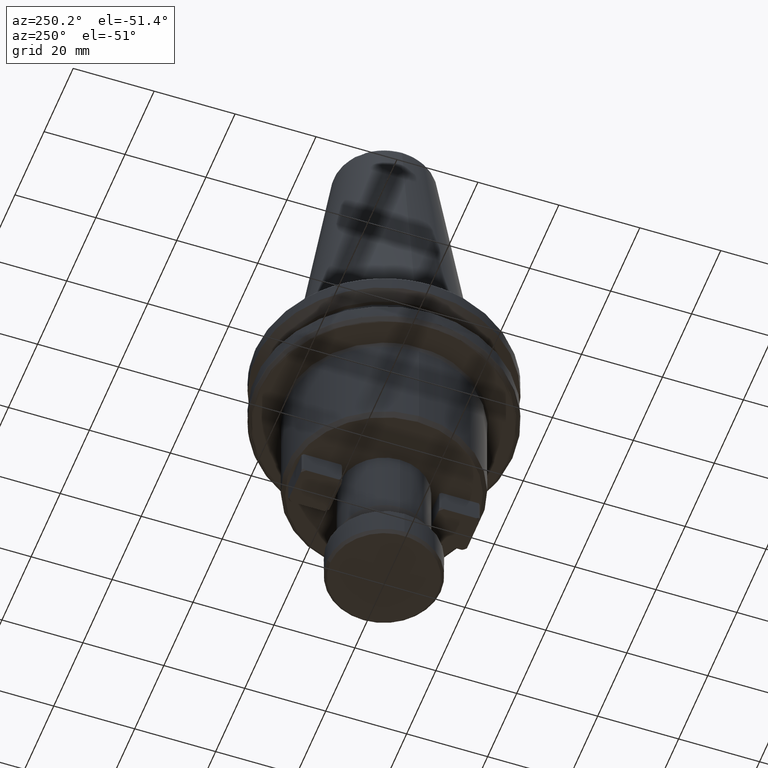
[diagram: clean part render]
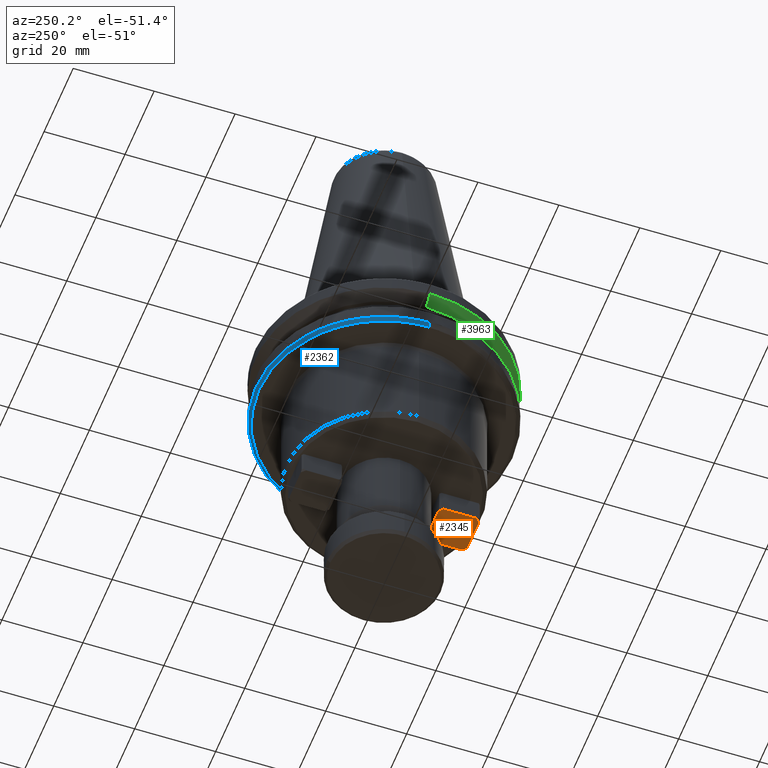
[diagram: same view with three faces highlighted in distinct colors, each labeled with its STEP entity id]
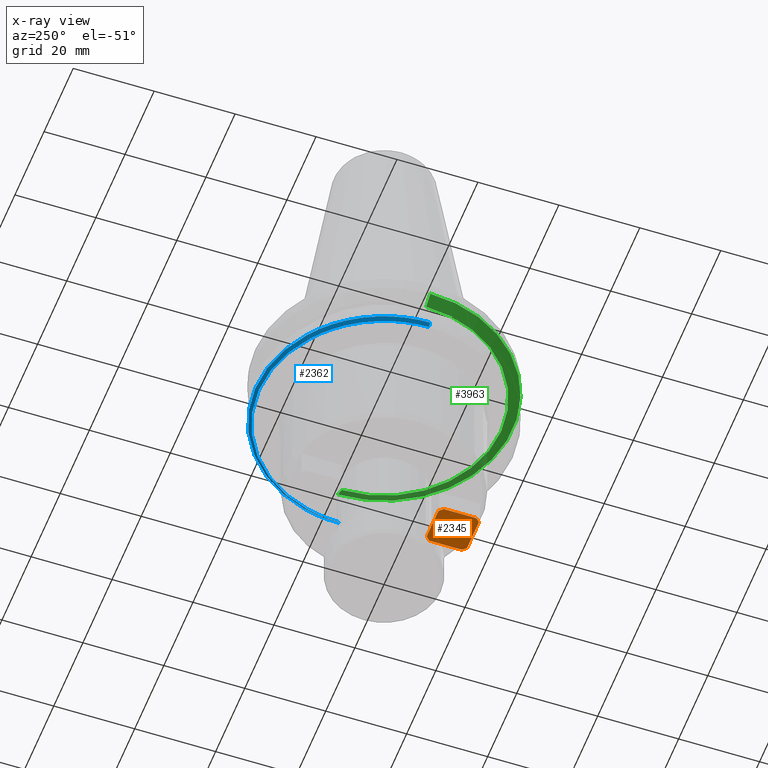
[diagram: x-ray of the same camera — body ghosted, the three highlighted faces saturated]
A machine part, auxiliary view with three faces highlighted in distinct colors.
The next image is the same camera in x-ray (body ghosted, the three faces saturated) — at least one of them is partly hidden behind the body in this view.
Their STEP definitions:

[orange] entity #2345 — the highlighted planar face has unit normal (0, 0, 1).
#3 = ORIENTED_EDGE ( 'NONE', *, *, #2706, .T. ) ;
#193 = VECTOR ( 'NONE', #1886, 1000.000000000000000 ) ;
#212 = DIRECTION ( 'NONE',  ( 0.7071067811865431300, -0.7071067811865520100, 0.0000000000000000000 ) ) ;
#317 = CARTESIAN_POINT ( 'NONE',  ( 4.034314575050808000, -22.00000000000001100, -50.79999999999999700 ) ) ;
#322 = VERTEX_POINT ( 'NONE', #1993 ) ;
#485 = CARTESIAN_POINT ( 'NONE',  ( -4.034314575050805400, -22.00000000000001100, -50.79999999999999700 ) ) ;
#525 = CARTESIAN_POINT ( 'NONE',  ( -5.000000000000002700, -21.03431457505080000, -50.79999999999999700 ) ) ;
#579 = PLANE ( 'NONE',  #4142 ) ;
#601 = CARTESIAN_POINT ( 'NONE',  ( 4.034314575050808000, -22.00000000000000700, -50.79999999999999700 ) ) ;
#699 = VECTOR ( 'NONE', #3827, 1000.000000000000000 ) ;
#783 = LINE ( 'NONE', #1332, #1516 ) ;
#923 = VERTEX_POINT ( 'NONE', #601 ) ;
#943 = VECTOR ( 'NONE', #1258, 1000.000000000000100 ) ;
#951 = FACE_OUTER_BOUND ( 'NONE', #2179, .T. ) ;
#956 = DIRECTION ( 'NONE',  ( 1.000000000000000000, 0.0000000000000000000, 0.0000000000000000000 ) ) ;
#1042 = LINE ( 'NONE', #1559, #193 ) ;
#1258 = DIRECTION ( 'NONE',  ( 0.7071067811865570100, 0.7071067811865379100, 0.0000000000000000000 ) ) ;
#1264 = CARTESIAN_POINT ( 'NONE',  ( 4.034314575050803600, -12.00000000000000700, -50.79999999999999700 ) ) ;
#1284 = EDGE_CURVE ( 'NONE', #322, #2428, #3420, .T. ) ;
#1332 = CARTESIAN_POINT ( 'NONE',  ( 5.000000000000001800, -12.96568542494924300, -50.79999999999999700 ) ) ;
#1472 = ORIENTED_EDGE ( 'NONE', *, *, #2188, .F. ) ;
#1516 = VECTOR ( 'NONE', #3214, 1000.000000000000000 ) ;
#1530 = DIRECTION ( 'NONE',  ( 0.0000000000000000000, 0.0000000000000000000, 1.000000000000000000 ) ) ;
#1557 = ORIENTED_EDGE ( 'NONE', *, *, #3015, .F. ) ;
#1559 = CARTESIAN_POINT ( 'NONE',  ( -5.000000000000001800, -22.00000000000001100, -50.79999999999999700 ) ) ;
#1616 = VECTOR ( 'NONE', #3850, 1000.000000000000000 ) ;
#1619 = VERTEX_POINT ( 'NONE', #485 ) ;
#1659 = VERTEX_POINT ( 'NONE', #2392 ) ;
#1703 = DIRECTION ( 'NONE',  ( 4.336808689942017700E-016, 1.000000000000000000, 0.0000000000000000000 ) ) ;
#1725 = VECTOR ( 'NONE', #956, 1000.000000000000000 ) ;
#1821 = LINE ( 'NONE', #3188, #1616 ) ;
#1886 = DIRECTION ( 'NONE',  ( 1.000000000000000000, 0.0000000000000000000, 0.0000000000000000000 ) ) ;
#1912 = ORIENTED_EDGE ( 'NONE', *, *, #3447, .F. ) ;
#1993 = CARTESIAN_POINT ( 'NONE',  ( -4.034314575050767200, -12.00000000000000700, -50.79999999999999700 ) ) ;
#2006 = EDGE_CURVE ( 'NONE', #3947, #2737, #1821, .T. ) ;
#2057 = EDGE_CURVE ( 'NONE', #1659, #2428, #783, .T. ) ;
#2179 = EDGE_LOOP ( 'NONE', ( #3, #3231, #3281, #1472, #1912, #2535, #1557, #2824 ) ) ;
#2188 = EDGE_CURVE ( 'NONE', #2662, #1659, #2726, .T. ) ;
#2211 = CARTESIAN_POINT ( 'NONE',  ( -4.999999999999997300, -12.96568542494919800, -50.79999999999999700 ) ) ;
#2275 = CARTESIAN_POINT ( 'NONE',  ( -5.000000000000003600, -21.03431457505080400, -50.79999999999999700 ) ) ;
#2345 = ADVANCED_FACE ( 'NONE', ( #951 ), #579, .F. ) ;
#2392 = CARTESIAN_POINT ( 'NONE',  ( 4.999999999999999100, -12.96568542494924100, -50.79999999999999700 ) ) ;
#2425 = LINE ( 'NONE', #525, #3960 ) ;
#2428 = VERTEX_POINT ( 'NONE', #1264 ) ;
#2535 = ORIENTED_EDGE ( 'NONE', *, *, #3411, .F. ) ;
#2662 = VERTEX_POINT ( 'NONE', #4140 ) ;
#2706 = EDGE_CURVE ( 'NONE', #2737, #322, #3132, .T. ) ;
#2726 = LINE ( 'NONE', #2963, #3487 ) ;
#2737 = VERTEX_POINT ( 'NONE', #2211 ) ;
#2824 = ORIENTED_EDGE ( 'NONE', *, *, #2006, .T. ) ;
#2843 = CARTESIAN_POINT ( 'NONE',  ( -4.999999999999999100, -12.00000000000000500, -50.79999999999999700 ) ) ;
#2963 = CARTESIAN_POINT ( 'NONE',  ( 4.999999999999997300, -22.00000000000001100, -50.79999999999999700 ) ) ;
#3015 = EDGE_CURVE ( 'NONE', #3947, #1619, #2425, .T. ) ;
#3132 = LINE ( 'NONE', #3484, #699 ) ;
#3188 = CARTESIAN_POINT ( 'NONE',  ( -5.000000000000001800, -22.00000000000001100, -50.79999999999999700 ) ) ;
#3214 = DIRECTION ( 'NONE',  ( -0.7071067811865348100, 0.7071067811865602300, 0.0000000000000000000 ) ) ;
#3231 = ORIENTED_EDGE ( 'NONE', *, *, #1284, .T. ) ;
#3281 = ORIENTED_EDGE ( 'NONE', *, *, #2057, .F. ) ;
#3411 = EDGE_CURVE ( 'NONE', #1619, #923, #1042, .T. ) ;
#3420 = LINE ( 'NONE', #2843, #1725 ) ;
#3447 = EDGE_CURVE ( 'NONE', #923, #2662, #3478, .T. ) ;
#3449 = CARTESIAN_POINT ( 'NONE',  ( 0.0000000000000000000, 0.0000000000000000000, -50.79999999999999700 ) ) ;
#3478 = LINE ( 'NONE', #317, #943 ) ;
#3484 = CARTESIAN_POINT ( 'NONE',  ( -4.999999999999993800, -12.96568542494920000, -50.79999999999999000 ) ) ;
#3487 = VECTOR ( 'NONE', #1703, 1000.000000000000000 ) ;
#3776 = DIRECTION ( 'NONE',  ( 1.000000000000000000, 0.0000000000000000000, -0.0000000000000000000 ) ) ;
#3827 = DIRECTION ( 'NONE',  ( 0.7071067811865602300, 0.7071067811865348100, -5.080887426301223800E-015 ) ) ;
#3850 = DIRECTION ( 'NONE',  ( 2.602085213965210600E-016, 1.000000000000000000, 0.0000000000000000000 ) ) ;
#3947 = VERTEX_POINT ( 'NONE', #2275 ) ;
#3960 = VECTOR ( 'NONE', #212, 1000.000000000000000 ) ;
#4140 = CARTESIAN_POINT ( 'NONE',  ( 4.999999999999997300, -21.03431457505084600, -50.79999999999999700 ) ) ;
#4142 = AXIS2_PLACEMENT_3D ( 'NONE', #3449, #1530, #3776 ) ;

[blue] entity #2362 — the highlighted conical surface has half-angle 45 deg.
#11 = EDGE_CURVE ( 'NONE', #2240, #2860, #2145, .T. ) ;
#72 = AXIS2_PLACEMENT_3D ( 'NONE', #2876, #669, #983 ) ;
#85 = AXIS2_PLACEMENT_3D ( 'NONE', #325, #2533, #648 ) ;
#172 = EDGE_CURVE ( 'NONE', #1798, #2693, #355, .T. ) ;
#187 = CARTESIAN_POINT ( 'NONE',  ( -30.44766929938765200, 8.577655408518355200, -18.21715728752538900 ) ) ;
#237 = ORIENTED_EDGE ( 'NONE', *, *, #435, .F. ) ;
#267 = DIRECTION ( 'NONE',  ( 0.0000000000000000000, -1.000000000000000000, -1.096786331689822400E-016 ) ) ;
#275 = DIRECTION ( 'NONE',  ( 1.000000000000000000, 0.0000000000000000000, 0.0000000000000000000 ) ) ;
#325 = CARTESIAN_POINT ( 'NONE',  ( 0.0000000000000000000, 1.261978349308298400E-014, -18.98284271247460700 ) ) ;
#350 = ORIENTED_EDGE ( 'NONE', *, *, #172, .F. ) ;
#355 = CIRCLE ( 'NONE', #3419, 31.63284271247459500 ) ;
#403 = AXIS2_PLACEMENT_3D ( 'NONE', #1858, #3143, #275 ) ;
#435 = EDGE_CURVE ( 'NONE', #2693, #1059, #1248, .T. ) ;
#458 = DIRECTION ( 'NONE',  ( -0.0000000000000000000, -1.224646799147353200E-016, 1.000000000000000000 ) ) ;
#487 = ORIENTED_EDGE ( 'NONE', *, *, #3074, .F. ) ;
#505 = EDGE_LOOP ( 'NONE', ( #2487, #585, #3520, #237, #350, #487, #2744, #1574, #3549, #1474, #3907, #3049 ) ) ;
#543 = CIRCLE ( 'NONE', #1735, 31.63284271247460900 ) ;
#546 = CONICAL_SURFACE ( 'NONE', #403, 31.63284271247462300, 0.7853981633974619300 ) ;
#547 = DIRECTION ( 'NONE',  ( -0.7071067811865572300, 8.659560562355052400E-017, 0.7071067811865379100 ) ) ;
#571 = CARTESIAN_POINT ( 'NONE',  ( 0.0000000000000000000, 0.0000000000000000000, -18.21715728752539200 ) ) ;
#585 = ORIENTED_EDGE ( 'NONE', *, *, #1108, .T. ) ;
#596 = EDGE_CURVE ( 'NONE', #2240, #2373, #3967, .T. ) ;
#622 = CARTESIAN_POINT ( 'NONE',  ( -25.65904787929898100, 18.50000000000000000, -18.21715728752538500 ) ) ;
#648 = DIRECTION ( 'NONE',  ( 0.0000000000000000000, -1.000000000000000000, -1.123993025867578800E-016 ) ) ;
#669 = DIRECTION ( 'NONE',  ( 0.0000000000000000000, 0.0000000000000000000, 1.000000000000000000 ) ) ;
#684 = CIRCLE ( 'NONE', #3772, 30.86715728752538400 ) ;
#715 = CARTESIAN_POINT ( 'NONE',  ( 0.0000000000000000000, 1.261978349308298400E-014, -18.98284271247460700 ) ) ;
#749 = VERTEX_POINT ( 'NONE', #2596 ) ;
#751 = CIRCLE ( 'NONE', #1976, 31.63284271247459500 ) ;
#837 = EDGE_CURVE ( 'NONE', #2327, #4044, #1838, .T. ) ;
#895 = DIRECTION ( 'NONE',  ( 1.000000000000000000, 0.0000000000000000000, 0.0000000000000000000 ) ) ;
#983 = DIRECTION ( 'NONE',  ( 1.000000000000000000, 0.0000000000000000000, 0.0000000000000000000 ) ) ;
#1030 = DIRECTION ( 'NONE',  ( 0.0000000000000000000, -1.000000000000000000, -1.123993025867578800E-016 ) ) ;
#1059 = VERTEX_POINT ( 'NONE', #187 ) ;
#1108 = EDGE_CURVE ( 'NONE', #2373, #2154, #3075, .T. ) ;
#1248 = CIRCLE ( 'NONE', #72, 31.63284271247460900 ) ;
#1290 = EDGE_CURVE ( 'NONE', #2327, #749, #2560, .T. ) ;
#1435 = CARTESIAN_POINT ( 'NONE',  ( 0.0000000000000000000, 0.0000000000000000000, -18.98284271247461100 ) ) ;
#1474 = ORIENTED_EDGE ( 'NONE', *, *, #2546, .F. ) ;
#1574 = ORIENTED_EDGE ( 'NONE', *, *, #837, .F. ) ;
#1706 = CARTESIAN_POINT ( 'NONE',  ( 0.0000000000000000000, 1.252601407260119900E-014, -18.21715728752538900 ) ) ;
#1712 = AXIS2_PLACEMENT_3D ( 'NONE', #2765, #2058, #4101 ) ;
#1735 = AXIS2_PLACEMENT_3D ( 'NONE', #571, #2785, #895 ) ;
#1737 = CIRCLE ( 'NONE', #2951, 30.86715728752539800 ) ;
#1739 = CARTESIAN_POINT ( 'NONE',  ( -24.70893358712253400, 18.50000000000000000, -18.98284271247460400 ) ) ;
#1757 = DIRECTION ( 'NONE',  ( 1.000000000000000000, 0.0000000000000000000, 0.0000000000000000000 ) ) ;
#1798 = VERTEX_POINT ( 'NONE', #3765 ) ;
#1799 = CARTESIAN_POINT ( 'NONE',  ( -31.63284271247462300, 3.873905957576372200E-015, -18.21715728752540300 ) ) ;
#1838 = LINE ( 'NONE', #3508, #2474 ) ;
#1858 = CARTESIAN_POINT ( 'NONE',  ( 0.0000000000000000000, 0.0000000000000000000, -18.21715728752540300 ) ) ;
#1893 = CARTESIAN_POINT ( 'NONE',  ( 0.0000000000000000000, 1.252601407260119900E-014, -18.21715728752538900 ) ) ;
#1976 = AXIS2_PLACEMENT_3D ( 'NONE', #4100, #2162, #267 ) ;
#2025 = DIRECTION ( 'NONE',  ( 0.0000000000000000000, -1.000000000000000000, -1.096786331689822400E-016 ) ) ;
#2058 = DIRECTION ( 'NONE',  ( -0.0000000000000000000, -0.0000000000000000000, -1.000000000000000000 ) ) ;
#2081 = EDGE_CURVE ( 'NONE', #2108, #2860, #684, .T. ) ;
#2108 = VERTEX_POINT ( 'NONE', #2304 ) ;
#2145 = CIRCLE ( 'NONE', #1712, 30.86715728752539800 ) ;
#2154 = VERTEX_POINT ( 'NONE', #3950 ) ;
#2162 = DIRECTION ( 'NONE',  ( -0.0000000000000000000, -1.224646799147353200E-016, 1.000000000000000000 ) ) ;
#2191 = CARTESIAN_POINT ( 'NONE',  ( -30.86715728752539800, 3.780136537094588000E-015, -18.98284271247460700 ) ) ;
#2208 = DIRECTION ( 'NONE',  ( 0.0000000000000000000, -1.000000000000000000, -1.096786331689822400E-016 ) ) ;
#2240 = VERTEX_POINT ( 'NONE', #2450 ) ;
#2297 = EDGE_CURVE ( 'NONE', #1059, #2154, #751, .T. ) ;
#2304 = CARTESIAN_POINT ( 'NONE',  ( -18.49999999999999600, 24.70893358712253700, -18.98284271247460400 ) ) ;
#2327 = VERTEX_POINT ( 'NONE', #3101 ) ;
#2359 = DIRECTION ( 'NONE',  ( 0.0000000000000000000, -1.000000000000000000, -1.123993025867578800E-016 ) ) ;
#2362 = ADVANCED_FACE ( 'NONE', ( #3190 ), #546, .T. ) ;
#2373 = VERTEX_POINT ( 'NONE', #2191 ) ;
#2450 = CARTESIAN_POINT ( 'NONE',  ( -29.79897479801665800, 8.050000000000002500, -18.98284271247460700 ) ) ;
#2474 = VECTOR ( 'NONE', #3187, 1000.000000000000000 ) ;
#2487 = ORIENTED_EDGE ( 'NONE', *, *, #596, .T. ) ;
#2533 = DIRECTION ( 'NONE',  ( -0.0000000000000000000, -1.224646799147353200E-016, 1.000000000000000000 ) ) ;
#2546 = EDGE_CURVE ( 'NONE', #2108, #749, #1737, .T. ) ;
#2560 = CIRCLE ( 'NONE', #85, 30.86715728752538400 ) ;
#2580 = CARTESIAN_POINT ( 'NONE',  ( 30.46793370986784000, 8.505395553603381800, -18.21715728752538900 ) ) ;
#2596 = CARTESIAN_POINT ( 'NONE',  ( 29.79897479801665800, 8.050000000000002500, -18.98284271247460700 ) ) ;
#2671 = CARTESIAN_POINT ( 'NONE',  ( 0.0000000000000000000, 1.261978349308298400E-014, -18.98284271247460700 ) ) ;
#2693 = VERTEX_POINT ( 'NONE', #622 ) ;
#2744 = ORIENTED_EDGE ( 'NONE', *, *, #3210, .F. ) ;
#2765 = CARTESIAN_POINT ( 'NONE',  ( 0.0000000000000000000, 0.0000000000000000000, -18.98284271247461100 ) ) ;
#2785 = DIRECTION ( 'NONE',  ( 0.0000000000000000000, 0.0000000000000000000, 1.000000000000000000 ) ) ;
#2860 = VERTEX_POINT ( 'NONE', #1739 ) ;
#2876 = CARTESIAN_POINT ( 'NONE',  ( 0.0000000000000000000, 0.0000000000000000000, -18.21715728752538500 ) ) ;
#2921 = DIRECTION ( 'NONE',  ( -0.0000000000000000000, -1.224646799147353200E-016, 1.000000000000000000 ) ) ;
#2951 = AXIS2_PLACEMENT_3D ( 'NONE', #1435, #3673, #1757 ) ;
#3014 = AXIS2_PLACEMENT_3D ( 'NONE', #1893, #4150, #2208 ) ;
#3049 = ORIENTED_EDGE ( 'NONE', *, *, #11, .F. ) ;
#3051 = AXIS2_PLACEMENT_3D ( 'NONE', #2671, #458, #2359 ) ;
#3074 = EDGE_CURVE ( 'NONE', #3522, #1798, #543, .T. ) ;
#3075 = LINE ( 'NONE', #1799, #4046 ) ;
#3101 = CARTESIAN_POINT ( 'NONE',  ( 30.86715728752539800, 0.0000000000000000000, -18.98284271247460700 ) ) ;
#3143 = DIRECTION ( 'NONE',  ( 0.0000000000000000000, 0.0000000000000000000, 1.000000000000000000 ) ) ;
#3187 = DIRECTION ( 'NONE',  ( 0.7071067811865572300, 0.0000000000000000000, 0.7071067811865379100 ) ) ;
#3190 = FACE_OUTER_BOUND ( 'NONE', #505, .T. ) ;
#3210 = EDGE_CURVE ( 'NONE', #4044, #3522, #3631, .T. ) ;
#3419 = AXIS2_PLACEMENT_3D ( 'NONE', #1706, #3969, #2025 ) ;
#3508 = CARTESIAN_POINT ( 'NONE',  ( 31.63284271247462300, 0.0000000000000000000, -18.21715728752540300 ) ) ;
#3520 = ORIENTED_EDGE ( 'NONE', *, *, #2297, .F. ) ;
#3522 = VERTEX_POINT ( 'NONE', #2580 ) ;
#3549 = ORIENTED_EDGE ( 'NONE', *, *, #1290, .T. ) ;
#3631 = CIRCLE ( 'NONE', #3014, 31.63284271247459500 ) ;
#3673 = DIRECTION ( 'NONE',  ( -0.0000000000000000000, -0.0000000000000000000, -1.000000000000000000 ) ) ;
#3765 = CARTESIAN_POINT ( 'NONE',  ( -18.49999999999999600, 25.65904787929898800, -18.21715728752538500 ) ) ;
#3772 = AXIS2_PLACEMENT_3D ( 'NONE', #715, #2921, #1030 ) ;
#3907 = ORIENTED_EDGE ( 'NONE', *, *, #2081, .T. ) ;
#3950 = CARTESIAN_POINT ( 'NONE',  ( -31.63284271247463800, 3.873905957576373800E-015, -18.21715728752538900 ) ) ;
#3967 = CIRCLE ( 'NONE', #3051, 30.86715728752538400 ) ;
#3969 = DIRECTION ( 'NONE',  ( -0.0000000000000000000, -1.224646799147353200E-016, 1.000000000000000000 ) ) ;
#4021 = CARTESIAN_POINT ( 'NONE',  ( 31.63284271247463800, 0.0000000000000000000, -18.21715728752538900 ) ) ;
#4044 = VERTEX_POINT ( 'NONE', #4021 ) ;
#4046 = VECTOR ( 'NONE', #547, 1000.000000000000000 ) ;
#4100 = CARTESIAN_POINT ( 'NONE',  ( 0.0000000000000000000, 1.252601407260119900E-014, -18.21715728752538900 ) ) ;
#4101 = DIRECTION ( 'NONE',  ( 1.000000000000000000, 0.0000000000000000000, 0.0000000000000000000 ) ) ;
#4150 = DIRECTION ( 'NONE',  ( -0.0000000000000000000, -1.224646799147353200E-016, 1.000000000000000000 ) ) ;

[green] entity #3963 — the highlighted conical surface has half-angle 60 deg.
#45 = DIRECTION ( 'NONE',  ( 1.000000000000000000, 0.0000000000000000000, 0.0000000000000000000 ) ) ;
#287 = VECTOR ( 'NONE', #3609, 1000.000000000000000 ) ;
#347 = LINE ( 'NONE', #3627, #2877 ) ;
#381 = CARTESIAN_POINT ( 'NONE',  ( -31.75000000000000000, 3.888253587292846500E-015, -7.578163357943284800 ) ) ;
#390 = DIRECTION ( 'NONE',  ( 1.000000000000000000, 0.0000000000000000000, 0.0000000000000000000 ) ) ;
#407 = VERTEX_POINT ( 'NONE', #381 ) ;
#481 = FACE_OUTER_BOUND ( 'NONE', #1122, .T. ) ;
#516 = CARTESIAN_POINT ( 'NONE',  ( -28.94089653438084400, 3.716245608910634800E-015, -9.200000000000013500 ) ) ;
#517 = ORIENTED_EDGE ( 'NONE', *, *, #4004, .F. ) ;
#944 = CARTESIAN_POINT ( 'NONE',  ( 28.94089653438084400, 0.0000000000000000000, -9.200000000000013500 ) ) ;
#1075 = AXIS2_PLACEMENT_3D ( 'NONE', #3914, #1664, #390 ) ;
#1122 = EDGE_LOOP ( 'NONE', ( #517, #1427, #1945, #3347 ) ) ;
#1136 = LINE ( 'NONE', #1374, #287 ) ;
#1374 = CARTESIAN_POINT ( 'NONE',  ( -31.75000000000000000, 3.888253587292846500E-015, -7.578163357943284800 ) ) ;
#1427 = ORIENTED_EDGE ( 'NONE', *, *, #3100, .T. ) ;
#1481 = CIRCLE ( 'NONE', #2160, 28.94089653438084400 ) ;
#1520 = CARTESIAN_POINT ( 'NONE',  ( 0.0000000000000000000, 0.0000000000000000000, -9.200000000000013500 ) ) ;
#1664 = DIRECTION ( 'NONE',  ( 0.0000000000000000000, -0.0000000000000000000, 1.000000000000000000 ) ) ;
#1701 = VERTEX_POINT ( 'NONE', #516 ) ;
#1713 = DIRECTION ( 'NONE',  ( 0.8660254037844390400, 0.0000000000000000000, 0.4999999999999993300 ) ) ;
#1851 = DIRECTION ( 'NONE',  ( 1.000000000000000000, 0.0000000000000000000, 0.0000000000000000000 ) ) ;
#1945 = ORIENTED_EDGE ( 'NONE', *, *, #2503, .T. ) ;
#1949 = DIRECTION ( 'NONE',  ( 0.0000000000000000000, 0.0000000000000000000, 1.000000000000000000 ) ) ;
#2030 = EDGE_CURVE ( 'NONE', #407, #4020, #2368, .T. ) ;
#2160 = AXIS2_PLACEMENT_3D ( 'NONE', #1520, #3766, #1851 ) ;
#2368 = CIRCLE ( 'NONE', #3339, 31.75000000000000000 ) ;
#2503 = EDGE_CURVE ( 'NONE', #3430, #4020, #347, .T. ) ;
#2814 = CONICAL_SURFACE ( 'NONE', #1075, 31.75000000000000000, 1.047197551196598500 ) ;
#2877 = VECTOR ( 'NONE', #1713, 1000.000000000000000 ) ;
#3100 = EDGE_CURVE ( 'NONE', #1701, #3430, #1481, .T. ) ;
#3282 = CARTESIAN_POINT ( 'NONE',  ( 31.75000000000000000, 0.0000000000000000000, -7.578163357943284800 ) ) ;
#3339 = AXIS2_PLACEMENT_3D ( 'NONE', #3880, #1949, #45 ) ;
#3347 = ORIENTED_EDGE ( 'NONE', *, *, #2030, .F. ) ;
#3430 = VERTEX_POINT ( 'NONE', #944 ) ;
#3609 = DIRECTION ( 'NONE',  ( -0.8660254037844390400, 1.060575238724907400E-016, 0.4999999999999993300 ) ) ;
#3627 = CARTESIAN_POINT ( 'NONE',  ( 31.75000000000000000, 0.0000000000000000000, -7.578163357943284800 ) ) ;
#3766 = DIRECTION ( 'NONE',  ( 0.0000000000000000000, -0.0000000000000000000, 1.000000000000000000 ) ) ;
#3880 = CARTESIAN_POINT ( 'NONE',  ( 0.0000000000000000000, 0.0000000000000000000, -7.578163357943284800 ) ) ;
#3914 = CARTESIAN_POINT ( 'NONE',  ( 0.0000000000000000000, 0.0000000000000000000, -7.578163357943284800 ) ) ;
#3963 = ADVANCED_FACE ( 'NONE', ( #481 ), #2814, .T. ) ;
#4004 = EDGE_CURVE ( 'NONE', #1701, #407, #1136, .T. ) ;
#4020 = VERTEX_POINT ( 'NONE', #3282 ) ;